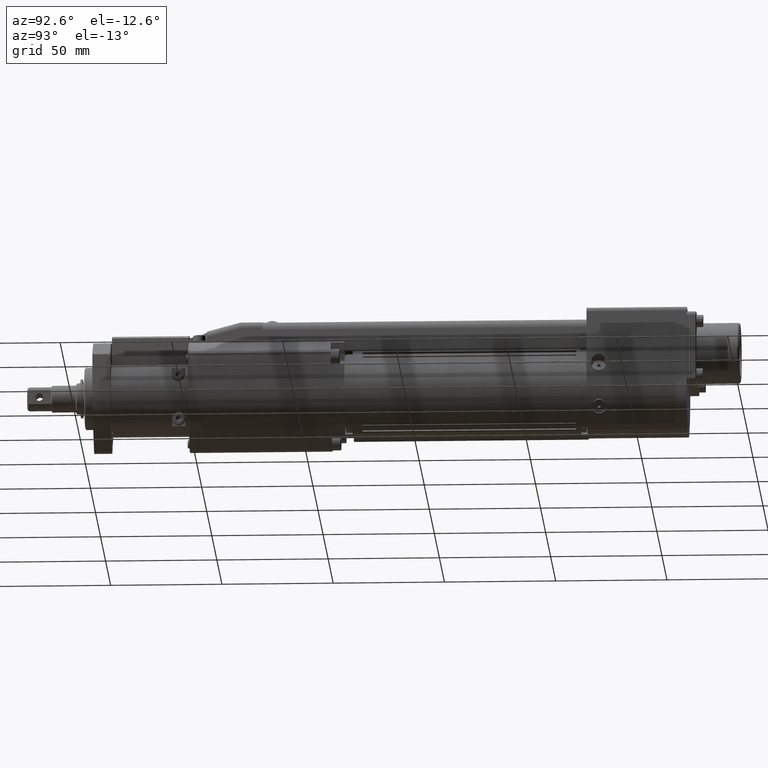
[diagram: clean part render]
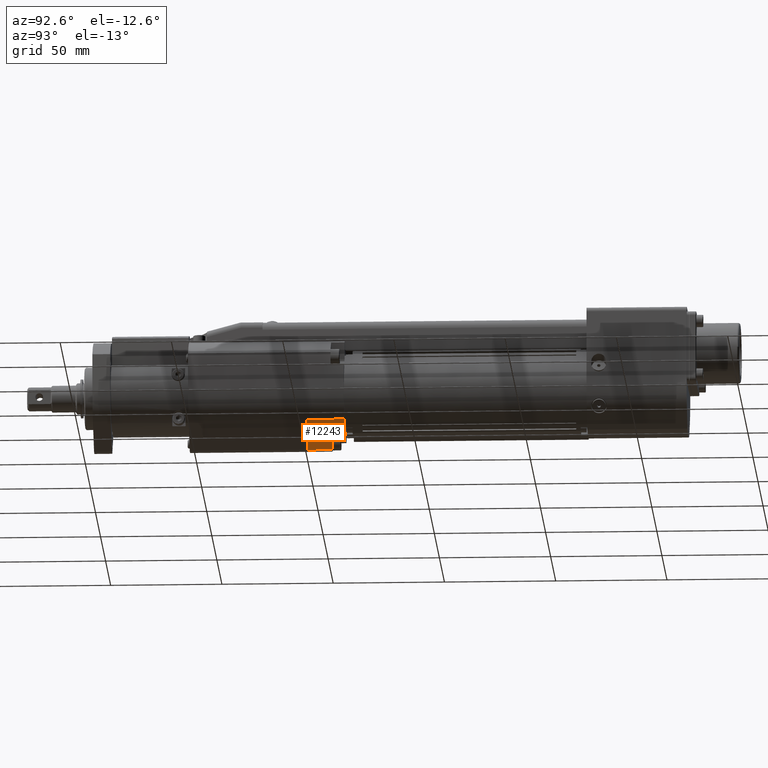
[diagram: same view with one face highlighted and labeled with its STEP entity id]
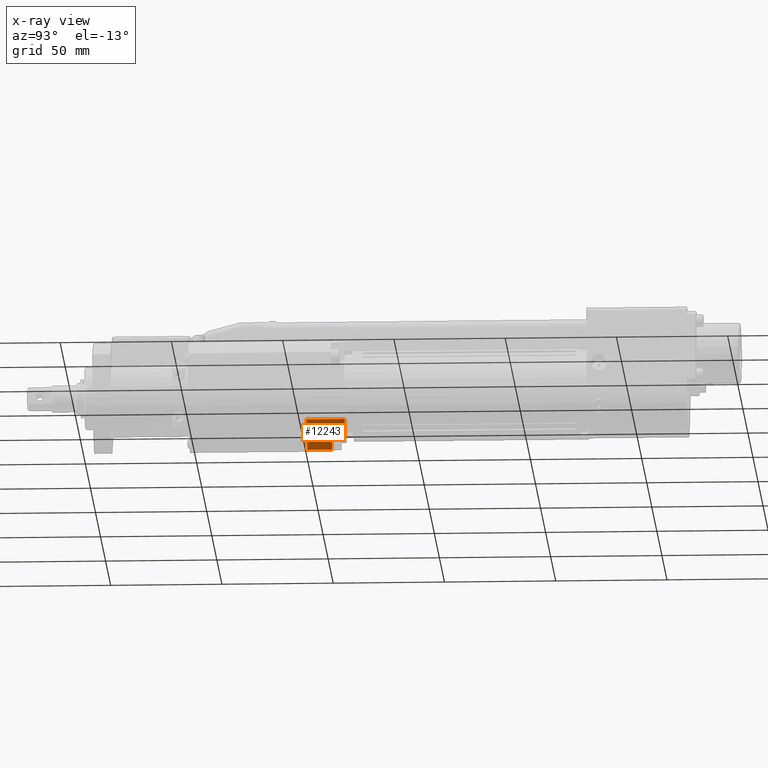
[diagram: x-ray of the same camera — body ghosted, the highlighted face saturated]
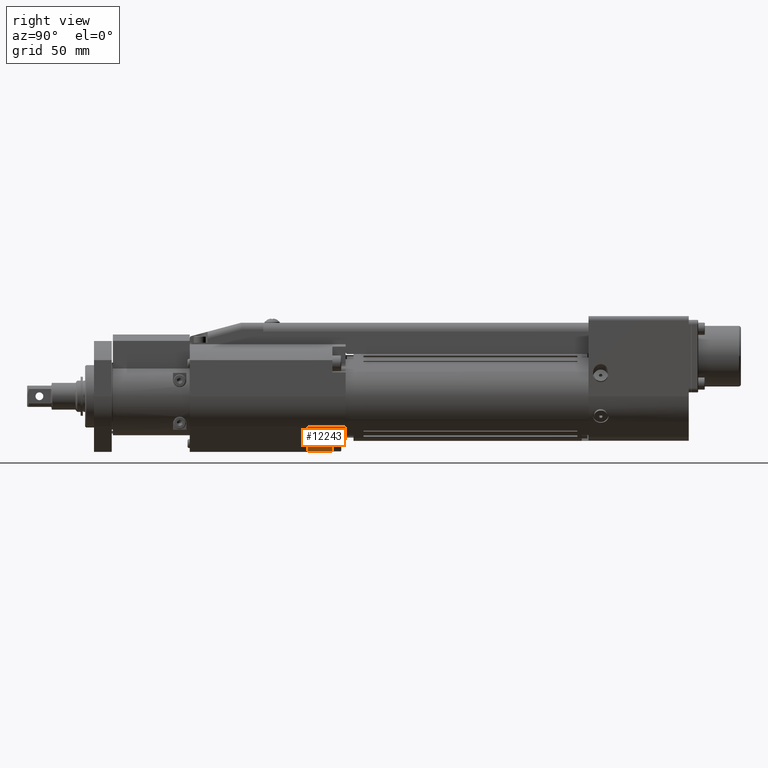
[diagram: same view with one face highlighted and labeled with its STEP entity id]
A machine part, auxiliary view. The second image highlights one B-rep face of the part: STEP entity #12243.
The next image is the same camera in x-ray: the body ghosted, the highlighted face saturated — about 0% of this face is hidden behind the body in this view.
A second angle (right view) of the same face is appended — the face is thin or edge-on in the first view.
In plain terms, the highlighted planar face has unit normal (0.7071, -0, -0.7071).
Its self-contained STEP definition (entity closure, byte-faithful):
#1277=FACE_OUTER_BOUND('',#2032,.T.);
#2032=EDGE_LOOP('',(#8569,#8570,#8571,#8572,#8573,#8574));
#2620=LINE('',#17747,#3654);
#2735=LINE('',#18385,#3769);
#2936=LINE('',#19132,#3970);
#2946=LINE('',#19159,#3980);
#2947=LINE('',#19160,#3981);
#2948=LINE('',#19161,#3982);
#3654=VECTOR('',#14195,10.);
#3769=VECTOR('',#14698,10.);
#3970=VECTOR('',#15243,10.);
#3980=VECTOR('',#15269,10.);
#3981=VECTOR('',#15270,10.);
#3982=VECTOR('',#15271,10.);
#4728=VERTEX_POINT('',#17744);
#4729=VERTEX_POINT('',#17746);
#4926=VERTEX_POINT('',#18375);
#4930=VERTEX_POINT('',#18384);
#5149=VERTEX_POINT('',#19157);
#5150=VERTEX_POINT('',#19158);
#5851=EDGE_CURVE('',#4728,#4729,#2620,.T.);
#6111=EDGE_CURVE('',#4930,#4926,#2735,.T.);
#6419=EDGE_CURVE('',#4926,#4728,#2936,.T.);
#6432=EDGE_CURVE('',#5149,#5150,#2946,.T.);
#6433=EDGE_CURVE('',#5150,#4729,#2947,.T.);
#6434=EDGE_CURVE('',#4930,#5149,#2948,.T.);
#8569=ORIENTED_EDGE('',*,*,#6432,.T.);
#8570=ORIENTED_EDGE('',*,*,#6433,.T.);
#8571=ORIENTED_EDGE('',*,*,#5851,.F.);
#8572=ORIENTED_EDGE('',*,*,#6419,.F.);
#8573=ORIENTED_EDGE('',*,*,#6111,.F.);
#8574=ORIENTED_EDGE('',*,*,#6434,.T.);
#11034=PLANE('',#13203);
#12243=ADVANCED_FACE('',(#1277),#11034,.T.);
#13203=AXIS2_PLACEMENT_3D('',#19156,#15267,#15268);
#14195=DIRECTION('',(-0.707106781205362,7.93855813908349E-32,-0.707106781167733));
#14698=DIRECTION('',(0.707106781205362,-7.93855813908349E-32,0.707106781167733));
#15243=DIRECTION('',(1.12268165861094E-31,1.,-4.28891390587759E-42));
#15267=DIRECTION('center_axis',(0.707106781167733,-7.93855813926758E-32,
-0.707106781205362));
#15268=DIRECTION('ref_axis',(-0.707106781205362,7.93855813908349E-32,-0.707106781167733));
#15269=DIRECTION('',(0.707106781205362,-7.93855813908349E-32,0.707106781167733));
#15270=DIRECTION('',(1.12268165861094E-31,1.,-4.28891390587759E-42));
#15271=DIRECTION('',(1.12268165861094E-31,1.,-4.28891390587759E-42));
#17744=CARTESIAN_POINT('',(13.4350288421869,117.,-13.4350288429019));
#17746=CARTESIAN_POINT('',(6.87005768455665,117.,-20.0000000001828));
#17747=CARTESIAN_POINT('',(1.94590354880517,117.,-24.9241541356722));
#18375=CARTESIAN_POINT('',(13.4350288421869,100.,-13.4350288429019));
#18384=CARTESIAN_POINT('',(1.94590354880517,100.,-24.9241541356722));
#18385=CARTESIAN_POINT('',(1.94590354880517,100.,-24.9241541356722));
#19132=CARTESIAN_POINT('',(13.4350288421869,100.,-13.4350288429019));
#19156=CARTESIAN_POINT('Origin',(13.4350288421869,100.,-13.4350288429019));
#19157=CARTESIAN_POINT('',(1.94590354880517,111.,-24.9241541356722));
#19158=CARTESIAN_POINT('',(6.87005768455665,111.,-20.0000000001828));
#19159=CARTESIAN_POINT('',(8.14473408927323,111.,-18.725323595534));
#19160=CARTESIAN_POINT('',(6.87005768455665,108.5,-20.0000000001828));
#19161=CARTESIAN_POINT('',(1.94590354880517,100.,-24.9241541356722));